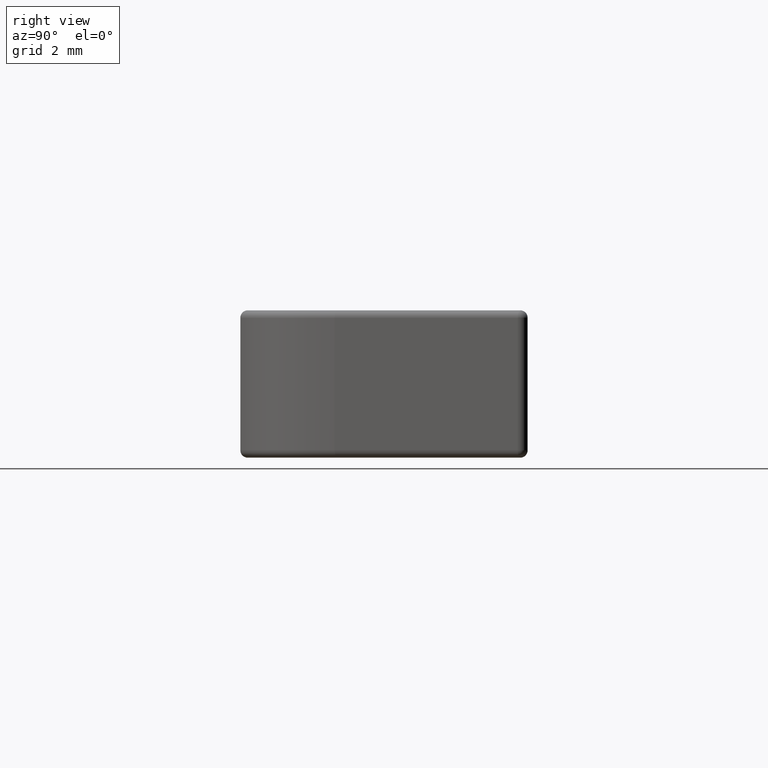
[diagram: clean part render]
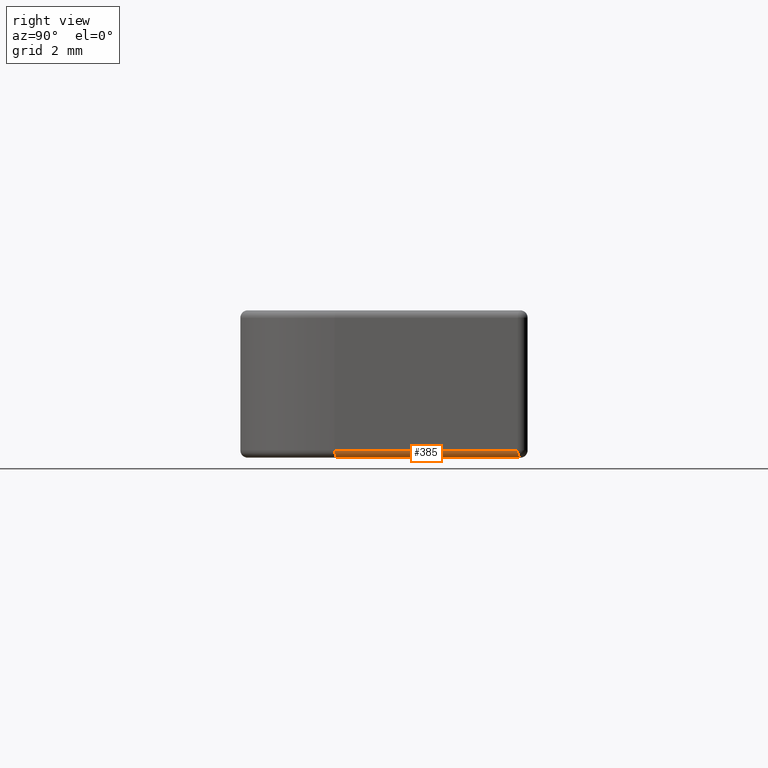
[diagram: same view with one face highlighted and labeled with its STEP entity id]
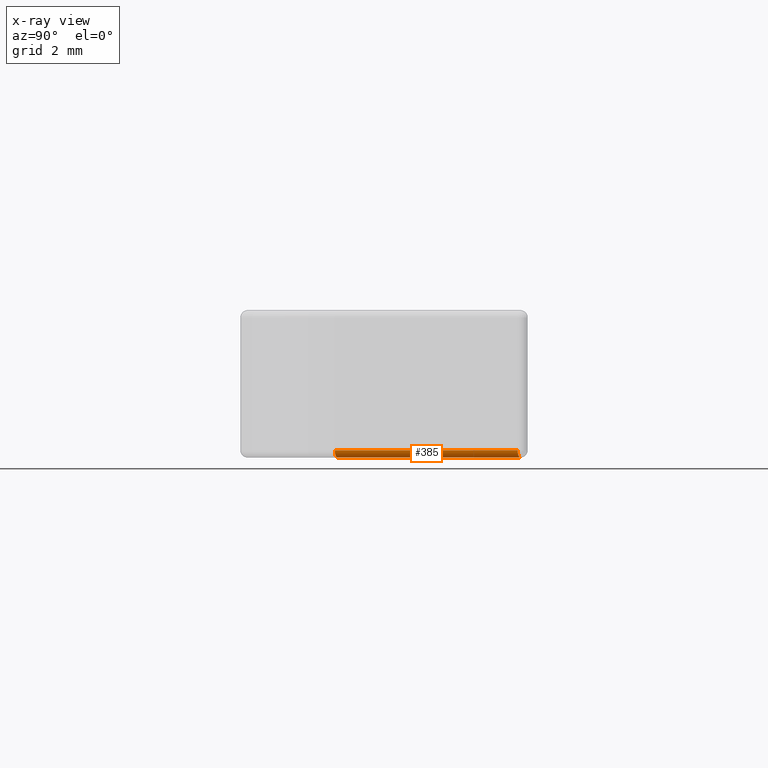
[diagram: x-ray of the same camera — body ghosted, the highlighted face saturated]
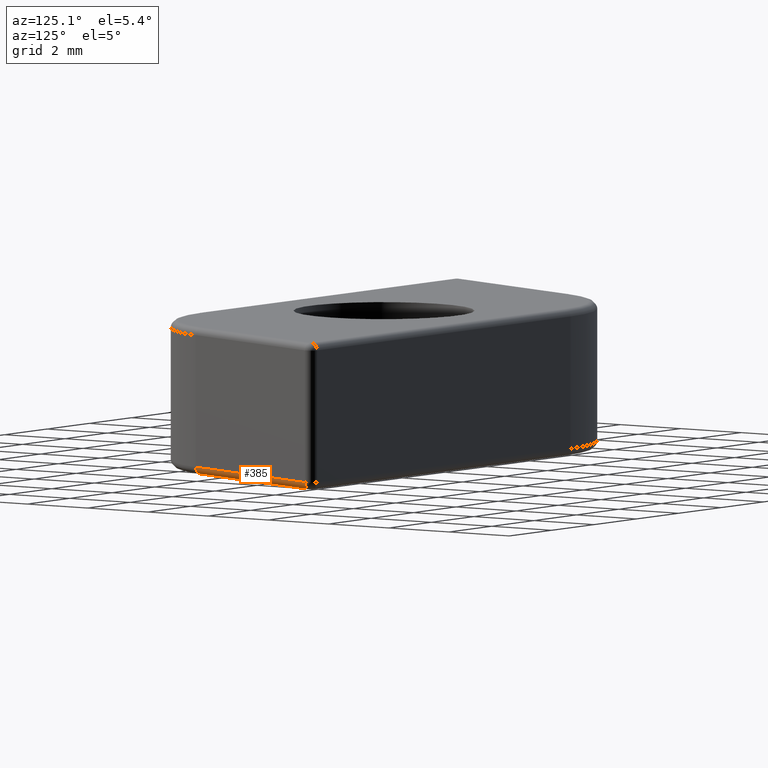
[diagram: same view with one face highlighted and labeled with its STEP entity id]
A machine part, right view. The second image highlights one B-rep face of the part: STEP entity #385.
The next image is the same camera in x-ray: the body ghosted, the highlighted face saturated — about 0% of this face is hidden behind the body in this view.
A second angle (auxiliary view) of the same face is appended — the face is thin or edge-on in the first view.
In plain terms, the highlighted cylindrical surface (edge-blend (fillet) strip) has radius 0.2 mm, axis along (0.359, 0.9333, 0).
Its self-contained STEP definition (entity closure, byte-faithful):
#27=LINE('',#695,#52);
#28=LINE('',#696,#53);
#52=VECTOR('',#566,10.);
#53=VECTOR('',#567,10.);
#75=CYLINDRICAL_SURFACE('',#463,0.2);
#100=FACE_OUTER_BOUND('',#127,.T.);
#127=EDGE_LOOP('',(#297,#298,#299,#300));
#161=CIRCLE('',#445,0.2);
#173=CIRCLE('',#461,0.199999999999999);
#190=VERTEX_POINT('',#657);
#192=VERTEX_POINT('',#660);
#201=VERTEX_POINT('',#684);
#203=VERTEX_POINT('',#688);
#221=EDGE_CURVE('',#192,#190,#161,.F.);
#235=EDGE_CURVE('',#201,#203,#173,.T.);
#238=EDGE_CURVE('',#190,#201,#27,.T.);
#239=EDGE_CURVE('',#203,#192,#28,.T.);
#297=ORIENTED_EDGE('',*,*,#221,.T.);
#298=ORIENTED_EDGE('',*,*,#238,.T.);
#299=ORIENTED_EDGE('',*,*,#235,.T.);
#300=ORIENTED_EDGE('',*,*,#239,.T.);
#385=ADVANCED_FACE('',(#100),#75,.T.);
#445=AXIS2_PLACEMENT_3D('',#661,#524,#525);
#461=AXIS2_PLACEMENT_3D('',#690,#558,#559);
#463=AXIS2_PLACEMENT_3D('',#694,#564,#565);
#524=DIRECTION('center_axis',(0.358991582898725,0.933340797033896,0.));
#525=DIRECTION('ref_axis',(0.,0.,-1.));
#558=DIRECTION('center_axis',(0.358991582898732,0.933340797033893,1.29527055336128E-15));
#559=DIRECTION('ref_axis',(0.933340797033893,-0.358991582898731,0.));
#564=DIRECTION('center_axis',(0.358991582898729,0.933340797033894,0.));
#565=DIRECTION('ref_axis',(0.659971606740726,-0.253845382656582,-0.707106781186546));
#566=DIRECTION('',(-0.358991582898729,-0.933340797033894,0.));
#567=DIRECTION('',(0.358991582898729,0.933340797033894,0.));
#657=CARTESIAN_POINT('',(8.89545800611282,3.62820168342026,0.2));
#660=CARTESIAN_POINT('',(8.70878984670604,3.7,0.));
#661=CARTESIAN_POINT('Origin',(8.70878984670604,3.7,0.2));
#684=CARTESIAN_POINT('',(6.98608627485566,-1.33596633159492,0.2));
#688=CARTESIAN_POINT('',(6.79941811544889,-1.26416801501517,0.));
#690=CARTESIAN_POINT('Origin',(6.79941811544889,-1.26416801501517,0.2));
#694=CARTESIAN_POINT('Origin',(6.07996465452625,-3.13467222356581,0.2));
#695=CARTESIAN_POINT('',(6.26663281393303,-3.20647054014555,0.2));
#696=CARTESIAN_POINT('',(6.07996465452625,-3.13467222356581,0.));